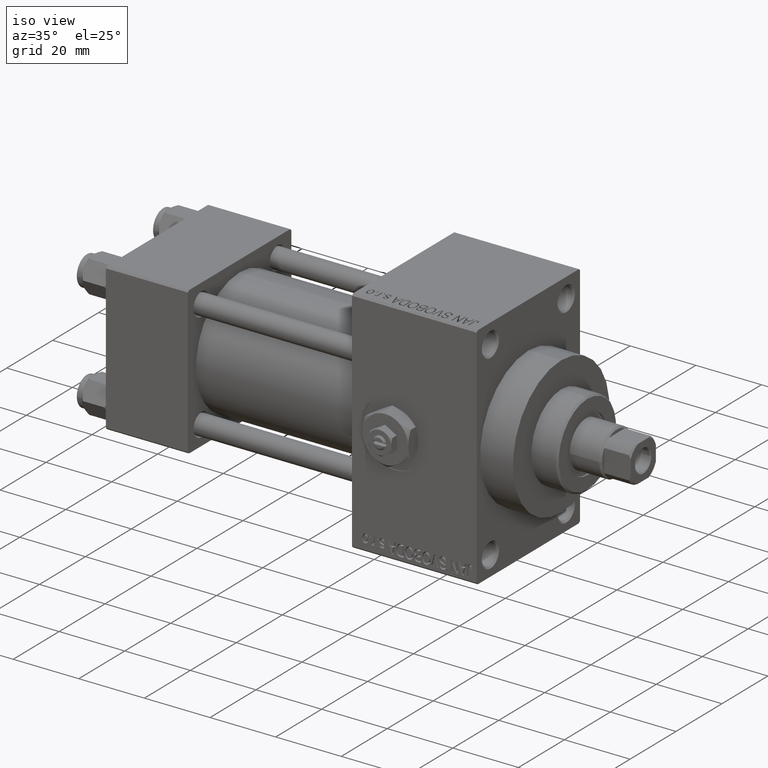
[diagram: clean part render]
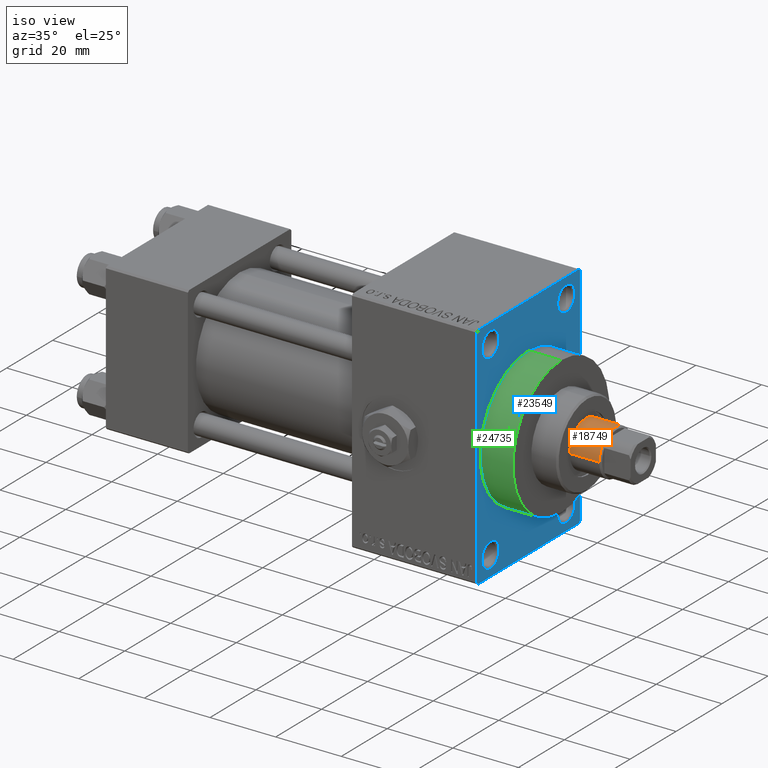
[diagram: same view with three faces highlighted in distinct colors, each labeled with its STEP entity id]
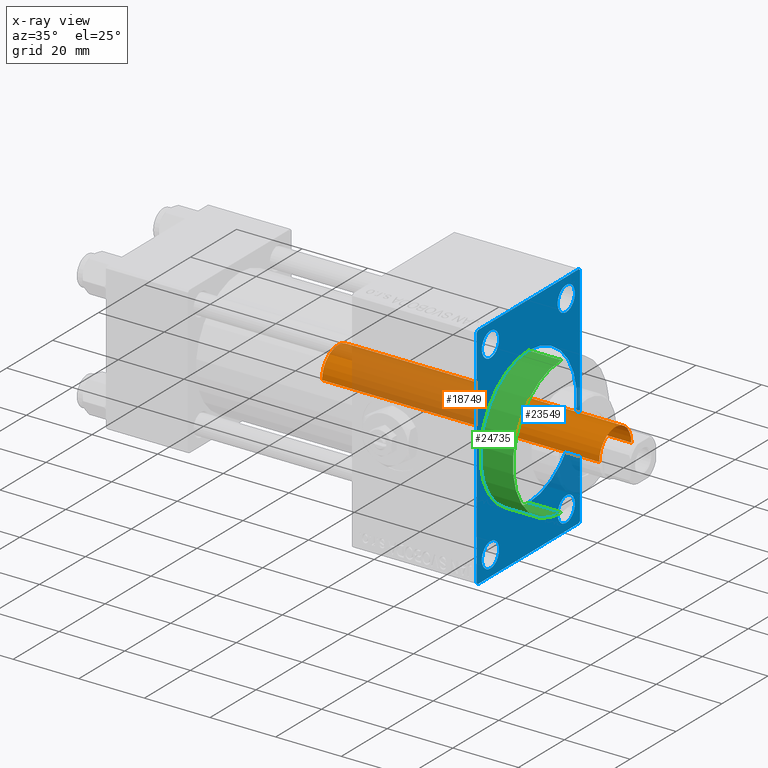
[diagram: x-ray of the same camera — body ghosted, the three highlighted faces saturated]
A machine part, iso view with three faces highlighted in distinct colors.
The next image is the same camera in x-ray (body ghosted, the three faces saturated) — at least one of them is partly hidden behind the body in this view.
Their STEP definitions:

[orange] entity #18749 — the highlighted cylindrical surface (edge-blend (fillet) strip) has radius 7 mm, axis along (-1, 0, 0).
#2476 = EDGE_CURVE ( 'NONE', #24711, #44990, #21776, .T. ) ;
#3033 = AXIS2_PLACEMENT_3D ( 'NONE', #36874, #3430, #39636 ) ;
#3430 = DIRECTION ( 'NONE',  ( 0.000000000000000000, 0.000000000000000000, 1.000000000000000000 ) ) ;
#7733 = VECTOR ( 'NONE', #27346, 1000.000000000000000 ) ;
#10065 = EDGE_CURVE ( 'NONE', #24711, #21670, #46456, .T. ) ;
#11806 = CYLINDRICAL_SURFACE ( 'NONE', #41652, 7.000000000000000000 ) ;
#12874 = VERTEX_POINT ( 'NONE', #33961 ) ;
#14021 = EDGE_CURVE ( 'NONE', #12874, #21670, #46209, .T. ) ;
#15839 = ORIENTED_EDGE ( 'NONE', *, *, #17080, .T. ) ;
#16592 = CARTESIAN_POINT ( 'NONE',  ( 0.000000000000000000, 0.000000000000000000, 114.4999999999999858 ) ) ;
#16723 = EDGE_LOOP ( 'NONE', ( #31821, #23592, #15839, #30471 ) ) ;
#17080 = EDGE_CURVE ( 'NONE', #44990, #12874, #38565, .T. ) ;
#18749 = ADVANCED_FACE ( 'NONE', ( #23620 ), #11806, .T. ) ;
#19970 = CARTESIAN_POINT ( 'NONE',  ( 7.000000000000000000, 8.572527594031473190E-16, 115.0000000000000000 ) ) ;
#21670 = VERTEX_POINT ( 'NONE', #26897 ) ;
#21776 = CIRCLE ( 'NONE', #30392, 7.000000000000000000 ) ;
#21932 = CARTESIAN_POINT ( 'NONE',  ( 7.000000000000000000, 8.572527594031473190E-16, 114.4999999999999858 ) ) ;
#23592 = ORIENTED_EDGE ( 'NONE', *, *, #2476, .T. ) ;
#23620 = FACE_OUTER_BOUND ( 'NONE', #16723, .T. ) ;
#23830 = DIRECTION ( 'NONE',  ( -0.000000000000000000, -0.000000000000000000, -1.000000000000000000 ) ) ;
#24711 = VERTEX_POINT ( 'NONE', #21932 ) ;
#26809 = DIRECTION ( 'NONE',  ( -1.000000000000000000, 0.000000000000000000, 0.000000000000000000 ) ) ;
#26897 = CARTESIAN_POINT ( 'NONE',  ( 7.000000000000000000, 8.572527594031473190E-16, 30.00000000000000000 ) ) ;
#27346 = DIRECTION ( 'NONE',  ( -0.000000000000000000, -0.000000000000000000, -1.000000000000000000 ) ) ;
#27519 = VECTOR ( 'NONE', #23830, 1000.000000000000000 ) ;
#30392 = AXIS2_PLACEMENT_3D ( 'NONE', #16592, #42387, #35522 ) ;
#30471 = ORIENTED_EDGE ( 'NONE', *, *, #14021, .T. ) ;
#31821 = ORIENTED_EDGE ( 'NONE', *, *, #10065, .F. ) ;
#33961 = CARTESIAN_POINT ( 'NONE',  ( -7.000000000000000000, 0.000000000000000000, 30.00000000000000000 ) ) ;
#34667 = CARTESIAN_POINT ( 'NONE',  ( 0.000000000000000000, 0.000000000000000000, 115.0000000000000000 ) ) ;
#35522 = DIRECTION ( 'NONE',  ( 1.000000000000000000, 0.000000000000000000, 0.000000000000000000 ) ) ;
#36874 = CARTESIAN_POINT ( 'NONE',  ( 0.000000000000000000, 0.000000000000000000, 30.00000000000000000 ) ) ;
#38565 = LINE ( 'NONE', #41986, #27519 ) ;
#39636 = DIRECTION ( 'NONE',  ( 1.000000000000000000, 0.000000000000000000, 0.000000000000000000 ) ) ;
#39787 = CARTESIAN_POINT ( 'NONE',  ( -7.000000000000000000, 0.000000000000000000, 114.4999999999999858 ) ) ;
#41652 = AXIS2_PLACEMENT_3D ( 'NONE', #34667, #45452, #26809 ) ;
#41986 = CARTESIAN_POINT ( 'NONE',  ( -7.000000000000000000, 0.000000000000000000, 115.0000000000000000 ) ) ;
#42387 = DIRECTION ( 'NONE',  ( 0.000000000000000000, 0.000000000000000000, -1.000000000000000000 ) ) ;
#44990 = VERTEX_POINT ( 'NONE', #39787 ) ;
#45452 = DIRECTION ( 'NONE',  ( -0.000000000000000000, -0.000000000000000000, -1.000000000000000000 ) ) ;
#46209 = CIRCLE ( 'NONE', #3033, 7.000000000000000000 ) ;
#46456 = LINE ( 'NONE', #19970, #7733 ) ;

[blue] entity #23549 — the highlighted planar face has unit normal (-1, 0, 0).
#57 = VERTEX_POINT ( 'NONE', #21115 ) ;
#297 = VERTEX_POINT ( 'NONE', #32617 ) ;
#371 = CARTESIAN_POINT ( 'NONE',  ( 113.0000000000000142, -21.99999999999998934, -35.00000000000000000 ) ) ;
#816 = CARTESIAN_POINT ( 'NONE',  ( 113.0000000000000142, -16.50000000000000000, -28.99999999999999289 ) ) ;
#1168 = CIRCLE ( 'NONE', #39619, 3.750000000000072831 ) ;
#1208 = CARTESIAN_POINT ( 'NONE',  ( 113.0000000000000142, 2.571758278209441661E-15, -21.00000000000000000 ) ) ;
#1379 = DIRECTION ( 'NONE',  ( -1.000000000000000000, -0.000000000000000000, -0.000000000000000000 ) ) ;
#1385 = DIRECTION ( 'NONE',  ( 0.000000000000000000, 0.000000000000000000, 1.000000000000000000 ) ) ;
#1499 = DIRECTION ( 'NONE',  ( 1.000000000000000000, 0.000000000000000000, 0.000000000000000000 ) ) ;
#1604 = CARTESIAN_POINT ( 'NONE',  ( 113.0000000000000142, 16.50000000000000000, 29.00000000000000355 ) ) ;
#2329 = DIRECTION ( 'NONE',  ( -1.000000000000000000, -0.000000000000000000, -0.000000000000000000 ) ) ;
#2556 = AXIS2_PLACEMENT_3D ( 'NONE', #23690, #19513, #4006 ) ;
#2941 = LINE ( 'NONE', #29508, #13529 ) ;
#3115 = CARTESIAN_POINT ( 'NONE',  ( 113.0000000000000142, 0.000000000000000000, 21.00000000000000000 ) ) ;
#3310 = ORIENTED_EDGE ( 'NONE', *, *, #8606, .F. ) ;
#3357 = LINE ( 'NONE', #34079, #18287 ) ;
#4006 = DIRECTION ( 'NONE',  ( 0.000000000000000000, 0.000000000000000000, 1.000000000000000000 ) ) ;
#4113 = AXIS2_PLACEMENT_3D ( 'NONE', #31263, #1499, #42289 ) ;
#4117 = VERTEX_POINT ( 'NONE', #24851 ) ;
#4180 = VERTEX_POINT ( 'NONE', #32711 ) ;
#4339 = VERTEX_POINT ( 'NONE', #14981 ) ;
#4406 = EDGE_CURVE ( 'NONE', #24155, #4180, #47689, .T. ) ;
#4577 = CARTESIAN_POINT ( 'NONE',  ( 113.0000000000000142, -16.50000000000000000, -28.99999999999999289 ) ) ;
#4605 = DIRECTION ( 'NONE',  ( 0.000000000000000000, -1.000000000000000000, 0.000000000000000000 ) ) ;
#4961 = CIRCLE ( 'NONE', #10474, 3.750000000000076383 ) ;
#5248 = DIRECTION ( 'NONE',  ( 0.000000000000000000, 0.000000000000000000, 1.000000000000000000 ) ) ;
#5253 = PLANE ( 'NONE',  #33230 ) ;
#5326 = ORIENTED_EDGE ( 'NONE', *, *, #13243, .T. ) ;
#5687 = DIRECTION ( 'NONE',  ( 0.000000000000000000, 0.000000000000000000, -1.000000000000000000 ) ) ;
#5780 = CIRCLE ( 'NONE', #25424, 21.00000000000000000 ) ;
#5850 = VECTOR ( 'NONE', #16753, 1000.000000000000000 ) ;
#5890 = VECTOR ( 'NONE', #41897, 999.9999999999998863 ) ;
#6071 = VERTEX_POINT ( 'NONE', #44444 ) ;
#6144 = LINE ( 'NONE', #21392, #41438 ) ;
#6152 = DIRECTION ( 'NONE',  ( 0.000000000000000000, -0.7071067811865474617, 0.7071067811865474617 ) ) ;
#6911 = AXIS2_PLACEMENT_3D ( 'NONE', #35360, #15697, #9034 ) ;
#7702 = DIRECTION ( 'NONE',  ( -1.000000000000000000, -0.000000000000000000, -0.000000000000000000 ) ) ;
#7761 = DIRECTION ( 'NONE',  ( -0.000000000000000000, -0.7071067811865474617, -0.7071067811865474617 ) ) ;
#7795 = LINE ( 'NONE', #22819, #47144 ) ;
#8088 = ORIENTED_EDGE ( 'NONE', *, *, #19077, .T. ) ;
#8094 = DIRECTION ( 'NONE',  ( 0.000000000000000000, 0.000000000000000000, -1.000000000000000000 ) ) ;
#8118 = ORIENTED_EDGE ( 'NONE', *, *, #38044, .T. ) ;
#8183 = DIRECTION ( 'NONE',  ( 0.000000000000000000, 0.000000000000000000, 1.000000000000000000 ) ) ;
#8606 = EDGE_CURVE ( 'NONE', #33465, #57, #45213, .T. ) ;
#8708 = ORIENTED_EDGE ( 'NONE', *, *, #26073, .T. ) ;
#8942 = CARTESIAN_POINT ( 'NONE',  ( 113.0000000000000142, -16.50000000000000000, 25.24999999999993960 ) ) ;
#9034 = DIRECTION ( 'NONE',  ( 0.000000000000000000, 0.000000000000000000, 1.000000000000000000 ) ) ;
#9798 = CARTESIAN_POINT ( 'NONE',  ( 113.0000000000000142, 16.50000000000000000, 32.75000000000007816 ) ) ;
#9804 = CARTESIAN_POINT ( 'NONE',  ( 113.0000000000000142, -22.50000000000000355, -34.49999999999997158 ) ) ;
#10114 = ORIENTED_EDGE ( 'NONE', *, *, #42084, .F. ) ;
#10262 = ORIENTED_EDGE ( 'NONE', *, *, #26684, .T. ) ;
#10474 = AXIS2_PLACEMENT_3D ( 'NONE', #15827, #42104, #5248 ) ;
#11208 = CIRCLE ( 'NONE', #48052, 3.750000000000072831 ) ;
#11281 = CIRCLE ( 'NONE', #14435, 3.750000000000076383 ) ;
#11859 = ORIENTED_EDGE ( 'NONE', *, *, #14790, .T. ) ;
#12394 = FACE_BOUND ( 'NONE', #42896, .T. ) ;
#12840 = CARTESIAN_POINT ( 'NONE',  ( 113.0000000000000142, 0.000000000000000000, 0.000000000000000000 ) ) ;
#12849 = ORIENTED_EDGE ( 'NONE', *, *, #22686, .T. ) ;
#13243 = EDGE_CURVE ( 'NONE', #19464, #57, #6144, .T. ) ;
#13320 = DIRECTION ( 'NONE',  ( 1.000000000000000000, 0.000000000000000000, 0.000000000000000000 ) ) ;
#13529 = VECTOR ( 'NONE', #6152, 1000.000000000000114 ) ;
#13770 = DIRECTION ( 'NONE',  ( 0.000000000000000000, 0.000000000000000000, 1.000000000000000000 ) ) ;
#13919 = EDGE_LOOP ( 'NONE', ( #10114, #23347 ) ) ;
#14435 = AXIS2_PLACEMENT_3D ( 'NONE', #42891, #35074, #1385 ) ;
#14654 = CARTESIAN_POINT ( 'NONE',  ( 113.0000000000000142, -21.99999999999997513, -35.00000000000000000 ) ) ;
#14790 = EDGE_CURVE ( 'NONE', #31653, #16991, #33720, .T. ) ;
#14981 = CARTESIAN_POINT ( 'NONE',  ( 113.0000000000000142, 21.99999999999999645, 35.00000000000000000 ) ) ;
#15088 = CIRCLE ( 'NONE', #2556, 3.750000000000069278 ) ;
#15590 = FACE_BOUND ( 'NONE', #25943, .T. ) ;
#15697 = DIRECTION ( 'NONE',  ( -1.000000000000000000, -0.000000000000000000, -0.000000000000000000 ) ) ;
#15827 = CARTESIAN_POINT ( 'NONE',  ( 113.0000000000000142, 16.50000000000000000, -28.99999999999999289 ) ) ;
#16753 = DIRECTION ( 'NONE',  ( 0.000000000000000000, -1.000000000000000000, 0.000000000000000000 ) ) ;
#16991 = VERTEX_POINT ( 'NONE', #35010 ) ;
#17135 = EDGE_CURVE ( 'NONE', #33263, #37311, #17667, .T. ) ;
#17498 = AXIS2_PLACEMENT_3D ( 'NONE', #816, #7702, #8183 ) ;
#17667 = LINE ( 'NONE', #20867, #25159 ) ;
#18287 = VECTOR ( 'NONE', #7761, 1000.000000000000114 ) ;
#18885 = VERTEX_POINT ( 'NONE', #9798 ) ;
#19077 = EDGE_CURVE ( 'NONE', #4339, #6071, #7795, .T. ) ;
#19464 = VERTEX_POINT ( 'NONE', #29300 ) ;
#19513 = DIRECTION ( 'NONE',  ( -1.000000000000000000, -0.000000000000000000, -0.000000000000000000 ) ) ;
#19592 = DIRECTION ( 'NONE',  ( 0.000000000000000000, 0.000000000000000000, 1.000000000000000000 ) ) ;
#20263 = CARTESIAN_POINT ( 'NONE',  ( 113.0000000000000142, 0.000000000000000000, 0.000000000000000000 ) ) ;
#20867 = CARTESIAN_POINT ( 'NONE',  ( 113.0000000000000142, -22.50000000000000355, 35.00000000000000000 ) ) ;
#21115 = CARTESIAN_POINT ( 'NONE',  ( 113.0000000000000142, 22.49999999999999645, -34.50000000000000000 ) ) ;
#21392 = CARTESIAN_POINT ( 'NONE',  ( 113.0000000000000142, 22.49999999999999645, -34.50000000000000000 ) ) ;
#21841 = VECTOR ( 'NONE', #8094, 1000.000000000000000 ) ;
#22072 = EDGE_CURVE ( 'NONE', #6071, #33263, #3357, .T. ) ;
#22622 = EDGE_CURVE ( 'NONE', #23665, #39626, #33194, .T. ) ;
#22686 = EDGE_CURVE ( 'NONE', #33465, #4339, #2941, .T. ) ;
#22819 = CARTESIAN_POINT ( 'NONE',  ( 113.0000000000000142, 22.49999999999999645, 35.00000000000000000 ) ) ;
#23266 = CARTESIAN_POINT ( 'NONE',  ( 113.0000000000000142, -16.50000000000000000, -32.75000000000007105 ) ) ;
#23347 = ORIENTED_EDGE ( 'NONE', *, *, #22622, .F. ) ;
#23549 = ADVANCED_FACE ( 'NONE', ( #15590, #12394, #30596, #45549, #23958, #38930 ), #5253, .F. ) ;
#23665 = VERTEX_POINT ( 'NONE', #1208 ) ;
#23690 = CARTESIAN_POINT ( 'NONE',  ( 113.0000000000000142, -16.50000000000000000, 29.00000000000000711 ) ) ;
#23958 = FACE_BOUND ( 'NONE', #13919, .T. ) ;
#24073 = DIRECTION ( 'NONE',  ( 0.000000000000000000, 0.000000000000000000, -1.000000000000000000 ) ) ;
#24155 = VERTEX_POINT ( 'NONE', #8942 ) ;
#24851 = CARTESIAN_POINT ( 'NONE',  ( 113.0000000000000142, 16.50000000000000000, 25.24999999999993250 ) ) ;
#25045 = ORIENTED_EDGE ( 'NONE', *, *, #28612, .T. ) ;
#25159 = VECTOR ( 'NONE', #24073, 1000.000000000000000 ) ;
#25424 = AXIS2_PLACEMENT_3D ( 'NONE', #12840, #13320, #5687 ) ;
#25943 = EDGE_LOOP ( 'NONE', ( #31035, #8118 ) ) ;
#26073 = EDGE_CURVE ( 'NONE', #16991, #31653, #41020, .T. ) ;
#26597 = VERTEX_POINT ( 'NONE', #42992 ) ;
#26684 = EDGE_CURVE ( 'NONE', #4117, #18885, #11208, .T. ) ;
#27516 = EDGE_CURVE ( 'NONE', #26597, #297, #4961, .T. ) ;
#27600 = CARTESIAN_POINT ( 'NONE',  ( 113.0000000000000142, 22.49999999999999645, -35.00000000000000000 ) ) ;
#28612 = EDGE_CURVE ( 'NONE', #297, #26597, #11281, .T. ) ;
#29300 = CARTESIAN_POINT ( 'NONE',  ( 113.0000000000000142, 21.99999999999999645, -35.00000000000000000 ) ) ;
#29508 = CARTESIAN_POINT ( 'NONE',  ( 113.0000000000000142, 21.99999999999999645, 35.00000000000000000 ) ) ;
#29947 = ORIENTED_EDGE ( 'NONE', *, *, #27516, .T. ) ;
#30596 = FACE_BOUND ( 'NONE', #42236, .T. ) ;
#31035 = ORIENTED_EDGE ( 'NONE', *, *, #4406, .T. ) ;
#31040 = LINE ( 'NONE', #27600, #5850 ) ;
#31263 = CARTESIAN_POINT ( 'NONE',  ( 113.0000000000000142, 0.000000000000000000, 0.000000000000000000 ) ) ;
#31319 = CARTESIAN_POINT ( 'NONE',  ( 113.0000000000000142, -22.50000000000000355, 34.50000000000000000 ) ) ;
#31567 = DIRECTION ( 'NONE',  ( -0.000000000000000000, 0.000000000000000000, 1.000000000000000000 ) ) ;
#31653 = VERTEX_POINT ( 'NONE', #23266 ) ;
#31673 = EDGE_CURVE ( 'NONE', #18885, #4117, #1168, .T. ) ;
#31926 = ORIENTED_EDGE ( 'NONE', *, *, #17135, .T. ) ;
#32617 = CARTESIAN_POINT ( 'NONE',  ( 113.0000000000000142, 16.50000000000000000, -32.75000000000007105 ) ) ;
#32711 = CARTESIAN_POINT ( 'NONE',  ( 113.0000000000000142, -16.50000000000000000, 32.75000000000007816 ) ) ;
#33194 = CIRCLE ( 'NONE', #4113, 21.00000000000000000 ) ;
#33230 = AXIS2_PLACEMENT_3D ( 'NONE', #20263, #35250, #31567 ) ;
#33263 = VERTEX_POINT ( 'NONE', #31319 ) ;
#33465 = VERTEX_POINT ( 'NONE', #41079 ) ;
#33720 = CIRCLE ( 'NONE', #36073, 3.750000000000076383 ) ;
#34079 = CARTESIAN_POINT ( 'NONE',  ( 113.0000000000000142, -22.50000000000000355, 34.50000000000000000 ) ) ;
#34575 = ORIENTED_EDGE ( 'NONE', *, *, #43619, .F. ) ;
#35010 = CARTESIAN_POINT ( 'NONE',  ( 113.0000000000000142, -16.50000000000000000, -25.24999999999992184 ) ) ;
#35074 = DIRECTION ( 'NONE',  ( -1.000000000000000000, -0.000000000000000000, -0.000000000000000000 ) ) ;
#35250 = DIRECTION ( 'NONE',  ( -1.000000000000000000, 0.000000000000000000, -0.000000000000000000 ) ) ;
#35360 = CARTESIAN_POINT ( 'NONE',  ( 113.0000000000000142, -16.50000000000000000, 29.00000000000000711 ) ) ;
#36073 = AXIS2_PLACEMENT_3D ( 'NONE', #4577, #1379, #19592 ) ;
#36461 = VERTEX_POINT ( 'NONE', #14654 ) ;
#37311 = VERTEX_POINT ( 'NONE', #9804 ) ;
#38044 = EDGE_CURVE ( 'NONE', #4180, #24155, #15088, .T. ) ;
#38930 = FACE_OUTER_BOUND ( 'NONE', #46917, .T. ) ;
#39619 = AXIS2_PLACEMENT_3D ( 'NONE', #1604, #2329, #47526 ) ;
#39626 = VERTEX_POINT ( 'NONE', #3115 ) ;
#40073 = EDGE_LOOP ( 'NONE', ( #10262, #40756 ) ) ;
#40756 = ORIENTED_EDGE ( 'NONE', *, *, #31673, .T. ) ;
#41020 = CIRCLE ( 'NONE', #17498, 3.750000000000076383 ) ;
#41052 = CARTESIAN_POINT ( 'NONE',  ( 113.0000000000000142, 22.49999999999999645, 35.00000000000000000 ) ) ;
#41079 = CARTESIAN_POINT ( 'NONE',  ( 113.0000000000000142, 22.49999999999999645, 34.50000000000000000 ) ) ;
#41438 = VECTOR ( 'NONE', #47894, 1000.000000000000114 ) ;
#41897 = DIRECTION ( 'NONE',  ( 0.000000000000000000, 0.7071067811865376918, -0.7071067811865574537 ) ) ;
#42084 = EDGE_CURVE ( 'NONE', #39626, #23665, #5780, .T. ) ;
#42104 = DIRECTION ( 'NONE',  ( -1.000000000000000000, -0.000000000000000000, -0.000000000000000000 ) ) ;
#42146 = LINE ( 'NONE', #371, #5890 ) ;
#42236 = EDGE_LOOP ( 'NONE', ( #25045, #29947 ) ) ;
#42289 = DIRECTION ( 'NONE',  ( 0.000000000000000000, 0.000000000000000000, -1.000000000000000000 ) ) ;
#42891 = CARTESIAN_POINT ( 'NONE',  ( 113.0000000000000142, 16.50000000000000000, -28.99999999999999289 ) ) ;
#42896 = EDGE_LOOP ( 'NONE', ( #11859, #8708 ) ) ;
#42992 = CARTESIAN_POINT ( 'NONE',  ( 113.0000000000000142, 16.50000000000000000, -25.24999999999992184 ) ) ;
#43619 = EDGE_CURVE ( 'NONE', #19464, #36461, #31040, .T. ) ;
#43932 = ORIENTED_EDGE ( 'NONE', *, *, #22072, .T. ) ;
#44444 = CARTESIAN_POINT ( 'NONE',  ( 113.0000000000000142, -21.99999999999998934, 35.00000000000000000 ) ) ;
#45213 = LINE ( 'NONE', #41052, #21841 ) ;
#45348 = EDGE_CURVE ( 'NONE', #37311, #36461, #42146, .T. ) ;
#45549 = FACE_BOUND ( 'NONE', #40073, .T. ) ;
#46917 = EDGE_LOOP ( 'NONE', ( #31926, #47953, #34575, #5326, #3310, #12849, #8088, #43932 ) ) ;
#47144 = VECTOR ( 'NONE', #4605, 1000.000000000000000 ) ;
#47164 = CARTESIAN_POINT ( 'NONE',  ( 113.0000000000000142, 16.50000000000000000, 29.00000000000000355 ) ) ;
#47413 = DIRECTION ( 'NONE',  ( -1.000000000000000000, -0.000000000000000000, -0.000000000000000000 ) ) ;
#47526 = DIRECTION ( 'NONE',  ( 0.000000000000000000, 0.000000000000000000, 1.000000000000000000 ) ) ;
#47689 = CIRCLE ( 'NONE', #6911, 3.750000000000069278 ) ;
#47894 = DIRECTION ( 'NONE',  ( -0.000000000000000000, 0.7071067811865474617, 0.7071067811865474617 ) ) ;
#47953 = ORIENTED_EDGE ( 'NONE', *, *, #45348, .T. ) ;
#48052 = AXIS2_PLACEMENT_3D ( 'NONE', #47164, #47413, #13770 ) ;

[green] entity #24735 — the highlighted cylindrical surface (partial cylindrical patch) has radius 21 mm, axis along (-1, -0, -0).
#252 = EDGE_LOOP ( 'NONE', ( #36524, #31116, #14525, #27747 ) ) ;
#1208 = CARTESIAN_POINT ( 'NONE',  ( 113.0000000000000142, 2.571758278209441661E-15, -21.00000000000000000 ) ) ;
#1507 = CIRCLE ( 'NONE', #20334, 21.00000000000000000 ) ;
#2249 = DIRECTION ( 'NONE',  ( -1.000000000000000000, -0.000000000000000000, -0.000000000000000000 ) ) ;
#3115 = CARTESIAN_POINT ( 'NONE',  ( 113.0000000000000142, 0.000000000000000000, 21.00000000000000000 ) ) ;
#5469 = VERTEX_POINT ( 'NONE', #27621 ) ;
#5687 = DIRECTION ( 'NONE',  ( 0.000000000000000000, 0.000000000000000000, -1.000000000000000000 ) ) ;
#5780 = CIRCLE ( 'NONE', #25424, 21.00000000000000000 ) ;
#6303 = EDGE_CURVE ( 'NONE', #43456, #5469, #1507, .T. ) ;
#6879 = LINE ( 'NONE', #47902, #42640 ) ;
#10108 = LINE ( 'NONE', #35944, #46534 ) ;
#12840 = CARTESIAN_POINT ( 'NONE',  ( 113.0000000000000142, 0.000000000000000000, 0.000000000000000000 ) ) ;
#13320 = DIRECTION ( 'NONE',  ( 1.000000000000000000, 0.000000000000000000, 0.000000000000000000 ) ) ;
#14525 = ORIENTED_EDGE ( 'NONE', *, *, #36827, .T. ) ;
#20334 = AXIS2_PLACEMENT_3D ( 'NONE', #44387, #25507, #21574 ) ;
#20834 = FACE_OUTER_BOUND ( 'NONE', #252, .T. ) ;
#21574 = DIRECTION ( 'NONE',  ( 0.000000000000000000, 0.000000000000000000, -1.000000000000000000 ) ) ;
#23665 = VERTEX_POINT ( 'NONE', #1208 ) ;
#24627 = AXIS2_PLACEMENT_3D ( 'NONE', #28457, #35820, #41772 ) ;
#24735 = ADVANCED_FACE ( 'NONE', ( #20834 ), #34434, .T. ) ;
#25424 = AXIS2_PLACEMENT_3D ( 'NONE', #12840, #13320, #5687 ) ;
#25507 = DIRECTION ( 'NONE',  ( 1.000000000000000000, 0.000000000000000000, 0.000000000000000000 ) ) ;
#27621 = CARTESIAN_POINT ( 'NONE',  ( 123.0000000000000142, 2.571758278209441661E-15, -21.00000000000000000 ) ) ;
#27747 = ORIENTED_EDGE ( 'NONE', *, *, #42084, .T. ) ;
#28457 = CARTESIAN_POINT ( 'NONE',  ( 123.0000000000000142, 0.000000000000000000, 0.000000000000000000 ) ) ;
#31116 = ORIENTED_EDGE ( 'NONE', *, *, #6303, .F. ) ;
#34434 = CYLINDRICAL_SURFACE ( 'NONE', #24627, 21.00000000000000000 ) ;
#35820 = DIRECTION ( 'NONE',  ( -1.000000000000000000, -0.000000000000000000, -0.000000000000000000 ) ) ;
#35944 = CARTESIAN_POINT ( 'NONE',  ( 123.0000000000000142, 0.000000000000000000, 21.00000000000000000 ) ) ;
#36524 = ORIENTED_EDGE ( 'NONE', *, *, #40024, .F. ) ;
#36827 = EDGE_CURVE ( 'NONE', #43456, #39626, #10108, .T. ) ;
#39626 = VERTEX_POINT ( 'NONE', #3115 ) ;
#40024 = EDGE_CURVE ( 'NONE', #5469, #23665, #6879, .T. ) ;
#41772 = DIRECTION ( 'NONE',  ( 0.000000000000000000, 0.000000000000000000, 1.000000000000000000 ) ) ;
#42084 = EDGE_CURVE ( 'NONE', #39626, #23665, #5780, .T. ) ;
#42640 = VECTOR ( 'NONE', #44457, 1000.000000000000000 ) ;
#43456 = VERTEX_POINT ( 'NONE', #43570 ) ;
#43570 = CARTESIAN_POINT ( 'NONE',  ( 123.0000000000000142, 0.000000000000000000, 21.00000000000000000 ) ) ;
#44387 = CARTESIAN_POINT ( 'NONE',  ( 123.0000000000000142, 0.000000000000000000, 0.000000000000000000 ) ) ;
#44457 = DIRECTION ( 'NONE',  ( -1.000000000000000000, -0.000000000000000000, -0.000000000000000000 ) ) ;
#46534 = VECTOR ( 'NONE', #2249, 1000.000000000000000 ) ;
#47902 = CARTESIAN_POINT ( 'NONE',  ( 123.0000000000000142, 2.571758278209441661E-15, -21.00000000000000000 ) ) ;